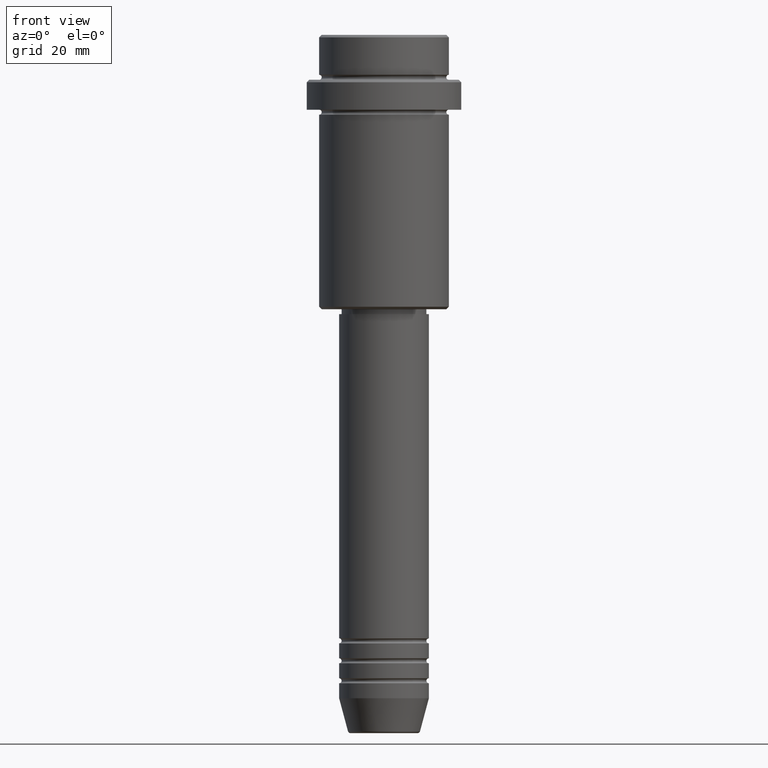
[diagram: clean part render]
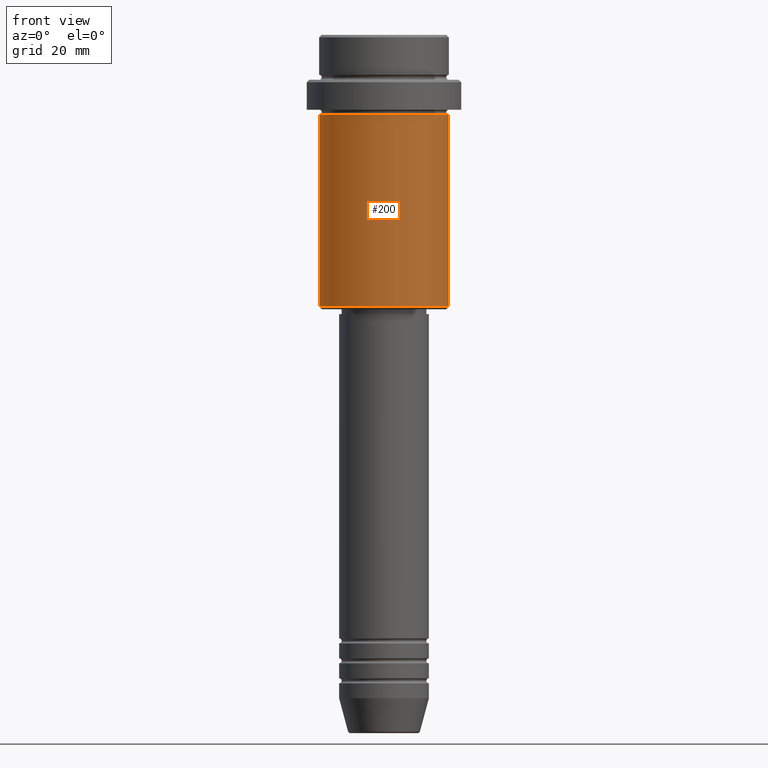
[diagram: same view with one face highlighted and labeled with its STEP entity id]
A machine part, front view. The second image highlights one B-rep face of the part: STEP entity #200.
In plain terms, the highlighted cylindrical surface (partial cylindrical patch) has radius 13 mm, axis along (-0, -0, 1).
Its self-contained STEP definition (entity closure, byte-faithful):
#72 = ORIENTED_EDGE ( 'NONE', *, *, #665, .F. ) ;
#87 = VECTOR ( 'NONE', #671, 1000.000000000000000 ) ;
#110 = VERTEX_POINT ( 'NONE', #976 ) ;
#123 = EDGE_CURVE ( 'NONE', #659, #167, #1398, .T. ) ;
#143 = FACE_OUTER_BOUND ( 'NONE', #1104, .T. ) ;
#167 = VERTEX_POINT ( 'NONE', #1029 ) ;
#198 = AXIS2_PLACEMENT_3D ( 'NONE', #1324, #1016, #788 ) ;
#200 = ADVANCED_FACE ( 'NONE', ( #143 ), #899, .T. ) ;
#281 = DIRECTION ( 'NONE',  ( -1.000000000000000000, 0.000000000000000000, 0.000000000000000000 ) ) ;
#336 = CARTESIAN_POINT ( 'NONE',  ( -13.00000000000000000, 1.592040838891559095E-15, 0.000000000000000000 ) ) ;
#412 = EDGE_CURVE ( 'NONE', #672, #659, #1392, .T. ) ;
#500 = VECTOR ( 'NONE', #1335, 1000.000000000000000 ) ;
#531 = ORIENTED_EDGE ( 'NONE', *, *, #1224, .F. ) ;
#588 = AXIS2_PLACEMENT_3D ( 'NONE', #829, #1160, #281 ) ;
#620 = CARTESIAN_POINT ( 'NONE',  ( 0.000000000000000000, 0.000000000000000000, -16.00000000000000000 ) ) ;
#659 = VERTEX_POINT ( 'NONE', #908 ) ;
#665 = EDGE_CURVE ( 'NONE', #672, #110, #777, .T. ) ;
#671 = DIRECTION ( 'NONE',  ( -0.000000000000000000, -0.000000000000000000, 1.000000000000000000 ) ) ;
#672 = VERTEX_POINT ( 'NONE', #1227 ) ;
#717 = ORIENTED_EDGE ( 'NONE', *, *, #123, .T. ) ;
#777 = LINE ( 'NONE', #336, #500 ) ;
#788 = DIRECTION ( 'NONE',  ( 1.000000000000000000, 0.000000000000000000, 0.000000000000000000 ) ) ;
#829 = CARTESIAN_POINT ( 'NONE',  ( 0.000000000000000000, 0.000000000000000000, -54.50000000000002132 ) ) ;
#861 = CARTESIAN_POINT ( 'NONE',  ( 13.00000000000000000, 0.000000000000000000, 0.000000000000000000 ) ) ;
#865 = DIRECTION ( 'NONE',  ( -0.000000000000000000, -0.000000000000000000, 1.000000000000000000 ) ) ;
#899 = CYLINDRICAL_SURFACE ( 'NONE', #198, 13.00000000000000000 ) ;
#908 = CARTESIAN_POINT ( 'NONE',  ( 13.00000000000000000, 0.000000000000000000, -54.50000000000002132 ) ) ;
#917 = AXIS2_PLACEMENT_3D ( 'NONE', #620, #865, #1387 ) ;
#976 = CARTESIAN_POINT ( 'NONE',  ( -13.00000000000000000, 1.592040838891559095E-15, -16.00000000000000000 ) ) ;
#985 = CIRCLE ( 'NONE', #917, 13.00000000000000000 ) ;
#1016 = DIRECTION ( 'NONE',  ( -0.000000000000000000, -0.000000000000000000, 1.000000000000000000 ) ) ;
#1029 = CARTESIAN_POINT ( 'NONE',  ( 13.00000000000000000, 0.000000000000000000, -16.00000000000000000 ) ) ;
#1104 = EDGE_LOOP ( 'NONE', ( #72, #1393, #717, #531 ) ) ;
#1160 = DIRECTION ( 'NONE',  ( -0.000000000000000000, -0.000000000000000000, 1.000000000000000000 ) ) ;
#1224 = EDGE_CURVE ( 'NONE', #110, #167, #985, .T. ) ;
#1227 = CARTESIAN_POINT ( 'NONE',  ( -13.00000000000000000, 1.592040838891559095E-15, -54.50000000000002132 ) ) ;
#1324 = CARTESIAN_POINT ( 'NONE',  ( 0.000000000000000000, 0.000000000000000000, 0.000000000000000000 ) ) ;
#1335 = DIRECTION ( 'NONE',  ( -0.000000000000000000, -0.000000000000000000, 1.000000000000000000 ) ) ;
#1387 = DIRECTION ( 'NONE',  ( 1.000000000000000000, 0.000000000000000000, 0.000000000000000000 ) ) ;
#1392 = CIRCLE ( 'NONE', #588, 13.00000000000000000 ) ;
#1393 = ORIENTED_EDGE ( 'NONE', *, *, #412, .T. ) ;
#1398 = LINE ( 'NONE', #861, #87 ) ;